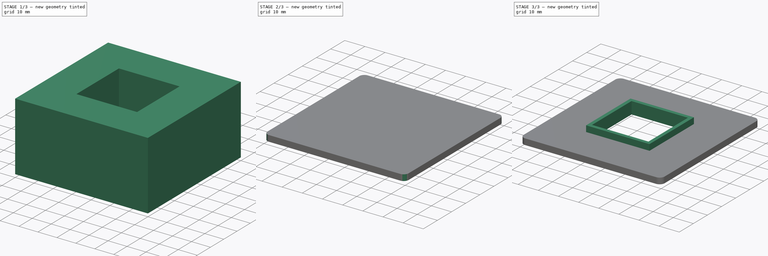
[diagram: build sequence overview — one tinted view per stage of 3, left to right]
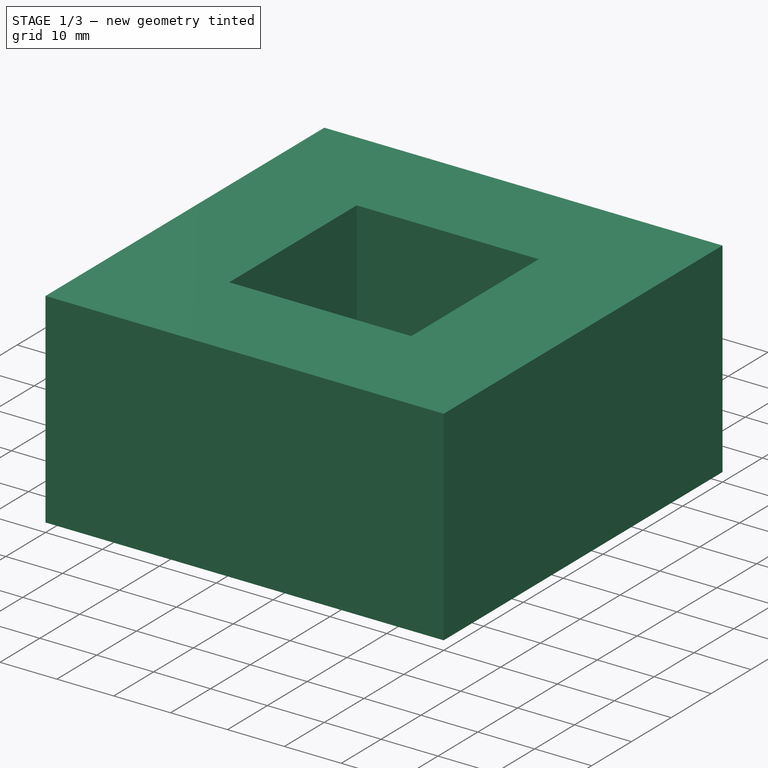
[diagram: stage 1 of 3 — iso view after this stage's code; geometry added in this stage tinted green]
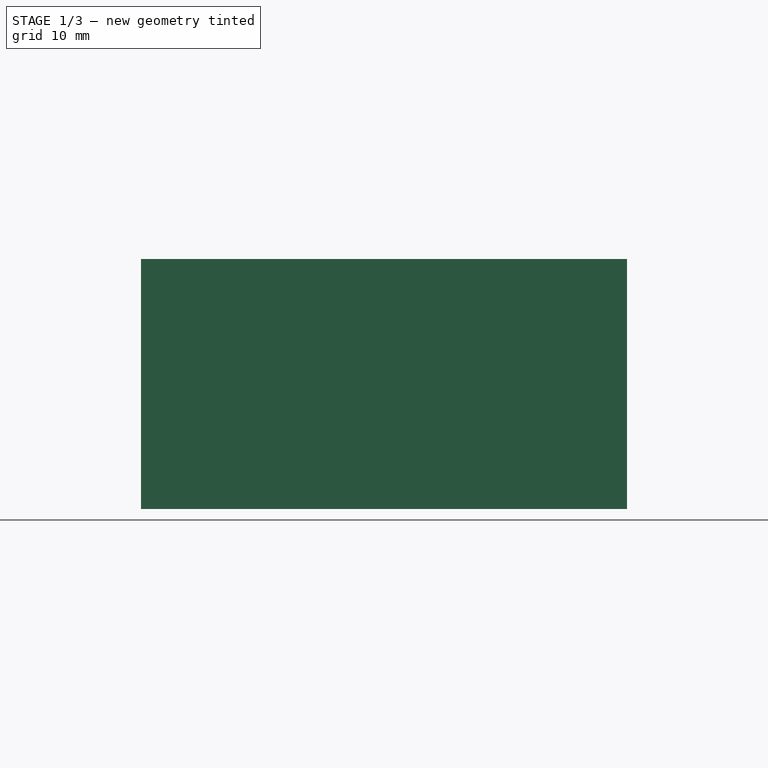
[diagram: stage 1 of 3 — front view after this stage's code; geometry added in this stage tinted green]
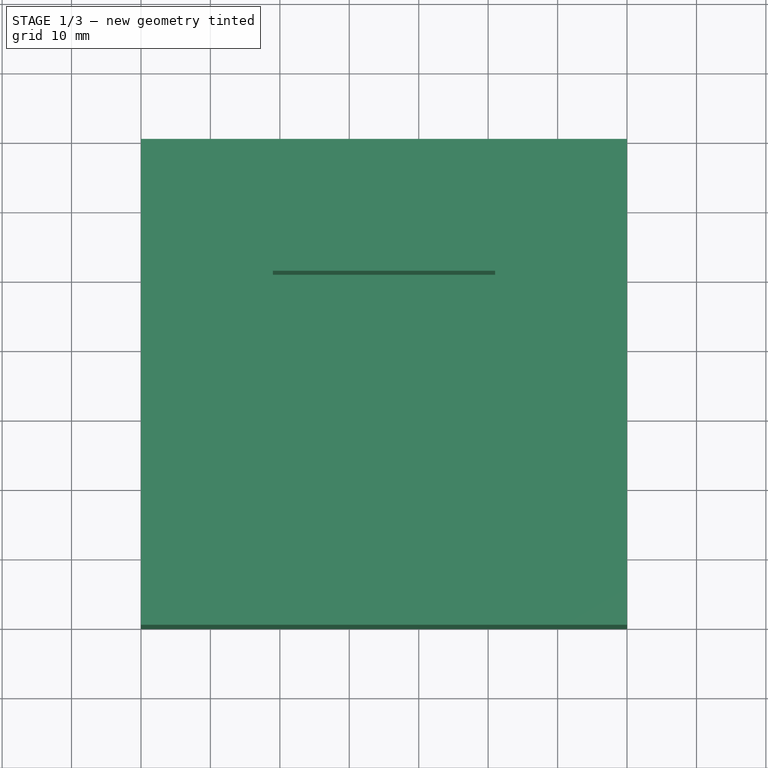
[diagram: stage 1 of 3 — top view after this stage's code; geometry added in this stage tinted green]
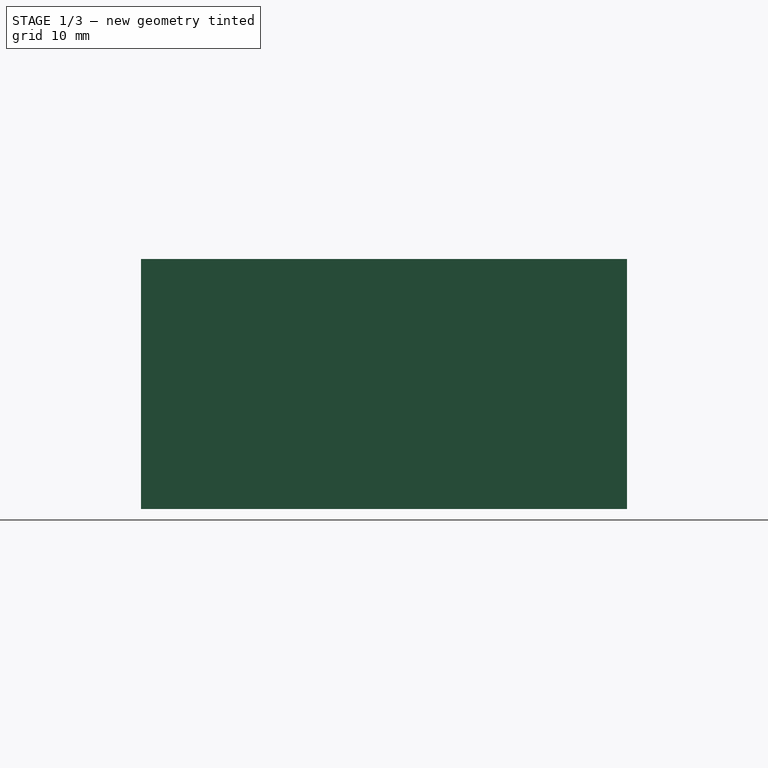
[diagram: stage 1 of 3 — right view after this stage's code; geometry added in this stage tinted green]
FCSTD DOCUMENT  (FreeCAD 0.19R)
Label: IkeaSofaFoot
License: All rights reserved
LicenseURL: http://en.wikipedia.org/wiki/All_rights_reserved
objects: Sketcher::SketchObject×4, PartDesign::Pad×3, PartDesign::Fillet×2, PartDesign::Body×2, App::Part×2, PartDesign::Draft×1, PartDesign::Pocket×1
note: 20 computed .brp shape members not serialized (recipe doc carries the construction recipe); baked Part::Feature solids carry a one-line shape summary decoded from their .brp

FEATURE [Sketcher::SketchObject] Sketch
  FullyConstrained = true
  MapMode = 5
  Support = -> [XY_Plane001]
  expr: Constraints[10] = .Constraints.MaxWidth
  expr: Constraints[23] = .Constraints.MaxWidth / 2
  expr: Constraints[24] = .Constraints.MaxWidth / 2
  sketch-geometry (9):
    g0: LineSegment StartX=0 StartY=0 StartZ=0 EndX=70 EndY=0 EndZ=0
    g1: LineSegment StartX=70 StartY=0 StartZ=0 EndX=70 EndY=70 EndZ=0
    g2: LineSegment StartX=70 StartY=70 StartZ=0 EndX=0 EndY=70 EndZ=0
    g3: LineSegment StartX=0 StartY=70 StartZ=0 EndX=0 EndY=0 EndZ=0
    g4: LineSegment StartX=51 StartY=19 StartZ=0 EndX=51 EndY=51 EndZ=0
    g5: LineSegment StartX=51 StartY=51 StartZ=0 EndX=19 EndY=51 EndZ=0
    g6: LineSegment StartX=19 StartY=51 StartZ=0 EndX=19 EndY=19 EndZ=0
    g7: LineSegment StartX=19 StartY=19 StartZ=0 EndX=51 EndY=19 EndZ=0
    g8: Circle CenterX=35 CenterY=35 CenterZ=0 NormalX=0 NormalY=0 NormalZ=1 AngleXU=0 Radius=22.6274
  constraints (26):
    c: Coincident(g0,g1)
    c: Coincident(g1,g2)
    c: Coincident(g2,g3)
    c: Coincident(g3,g0)
    c: Horizontal(g0)
    c: Horizontal(g2)
    c: Vertical(g1)
    c: Vertical(g3)
    c: Coincident(g0,g-1)
    c: DistanceX(g0,g0) = 70  'MaxWidth'
    c: DistanceY(g1,g1) = 70
    c: Coincident(g4,g5)
    c: Coincident(g5,g6)
    c: Coincident(g6,g7)
    c: Coincident(g7,g4)
    c: Equal(g4,g5)
    c: Equal(g4,g6)
    c: Equal(g4,g7)
    c: PointOnObject(g4,g8)
    c: PointOnObject(g5,g8)
    c: PointOnObject(g6,g8)
    c: PointOnObject(g7,g8)
    c: Horizontal(g5)
    c: DistanceX(g0,g8) = 35
    c: DistanceY(g0,g8) = 35
    c: DistanceX(g5,g5) = 32
FEATURE [PartDesign::Pad] Pad
  Direction = (1,1,1)
  Length = 33
  Length2 = 100
  Profile = -> Sketch
  Type = 0
FEATURE [PartDesign::Body] Body
  Group = -> [Sketch,Pad,Draft,Fillet]
  Origin = -> Origin001
  Tip = -> Fillet
FEATURE [App::Part] Part
  Group = -> [Body]
  Origin = -> Origin
FEATURE [Sketcher::SketchObject] Sketch001
  FullyConstrained = true
  MapMode = 5
  Support = -> [XY_Plane003]
  expr: Constraints[10] = <<Sketch>>.Constraints.MaxWidth
  expr: Constraints[9] = <<Sketch>>.Constraints.MaxWidth
  sketch-geometry (4):
    g0: LineSegment StartX=0 StartY=0 StartZ=0 EndX=70 EndY=0 EndZ=0
    g1: LineSegment StartX=70 StartY=0 StartZ=0 EndX=70 EndY=70 EndZ=0
    g2: LineSegment StartX=70 StartY=70 StartZ=0 EndX=0 EndY=70 EndZ=0
    g3: LineSegment StartX=0 StartY=70 StartZ=0 EndX=0 EndY=0 EndZ=0
  constraints (11):
    c: Coincident(g0,g1)
    c: Coincident(g1,g2)
    c: Coincident(g2,g3)
    c: Coincident(g3,g0)
    c: Horizontal(g0)
    c: Horizontal(g2)
    c: Vertical(g1)
    c: Vertical(g3)
    c: Coincident(g0,g-1)
    c: DistanceX(g2,g2) = 70
    c: DistanceY(g1,g1) = 70
FEATURE [PartDesign::Pad] Pad001
  Direction = (1,1,1)
  Length = 3
  Length2 = 100
  Profile = -> Sketch001
  Reversed = true
  Type = 0
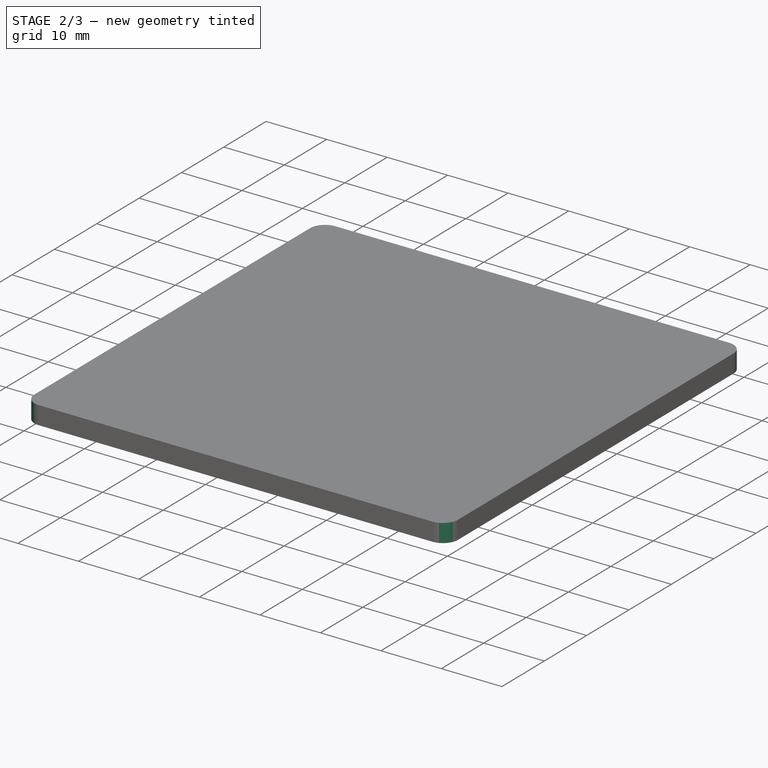
[diagram: stage 2 of 3 — iso view after this stage's code; geometry added in this stage tinted green]
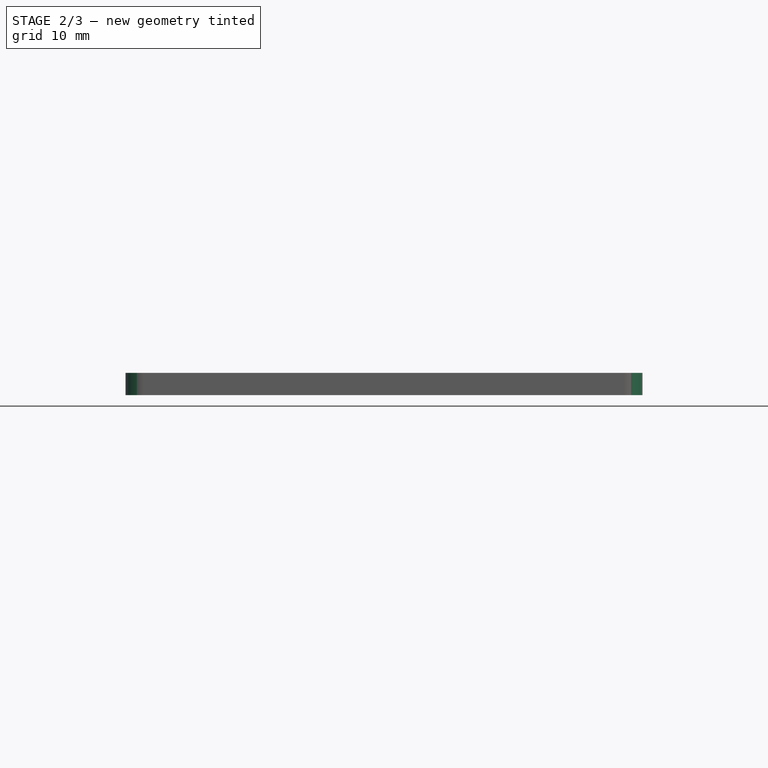
[diagram: stage 2 of 3 — front view after this stage's code; geometry added in this stage tinted green]
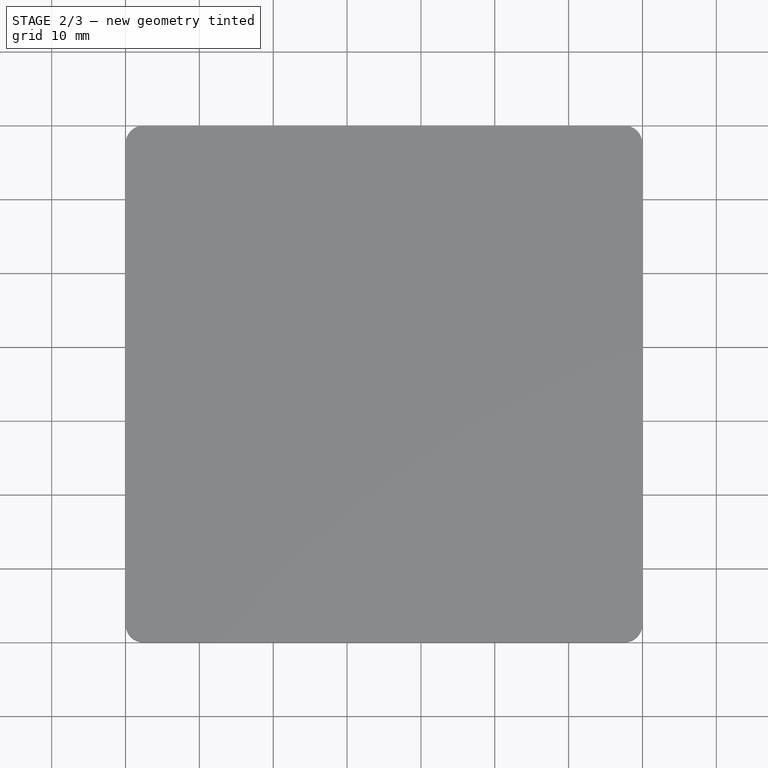
[diagram: stage 2 of 3 — top view after this stage's code; geometry added in this stage tinted green]
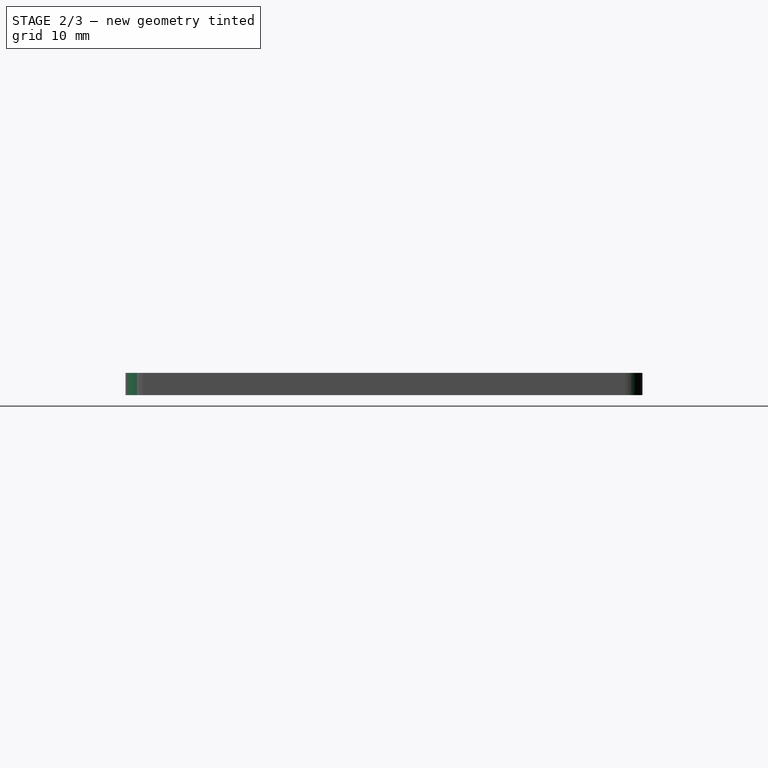
[diagram: stage 2 of 3 — right view after this stage's code; geometry added in this stage tinted green]
FEATURE [PartDesign::Draft] Draft
  Angle = 4
  Base = -> Pad [Face1,Face2,Face4,Face3]
  BaseFeature = -> Pad
  NeutralPlane = -> Pad [Face9]
  SupportTransform = false
FEATURE [PartDesign::Fillet] Fillet
  Base = -> Draft [Edge7,Edge10,Edge24,Edge22,Edge19,Edge16,Edge4,Edge12,Edge1,Edge8,Edge2,Edge5]
  BaseFeature = -> Draft
  Radius = 2.5
  SupportTransform = false
FEATURE [PartDesign::Fillet] Fillet001
  Base = -> Pad001 [Edge5,Edge8,Edge2,Edge1]
  BaseFeature = -> Pad001
  Radius = 2.5
  SupportTransform = false
  expr: Radius = <<Fillet>>.Radius
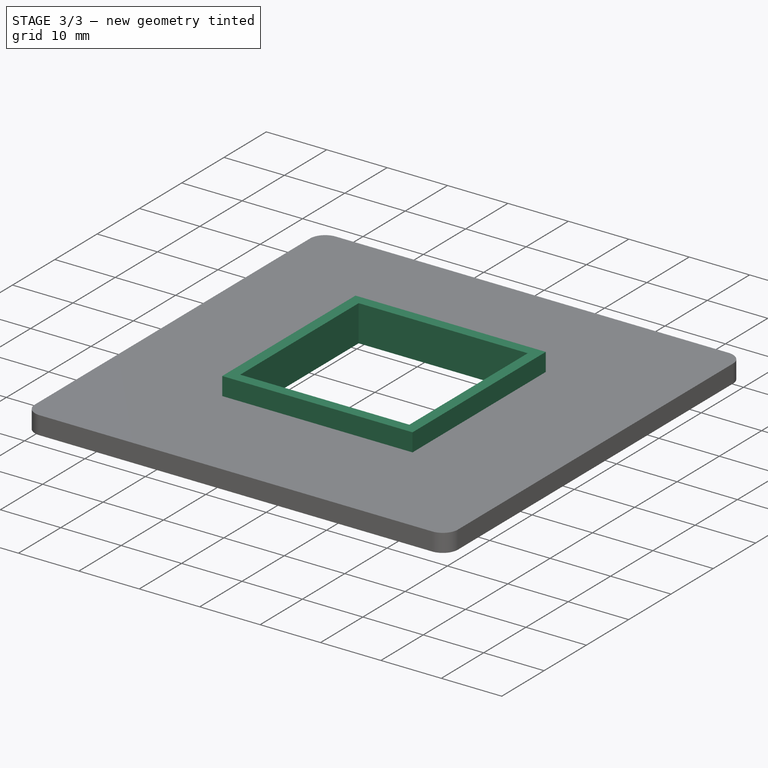
[diagram: stage 3 of 3 — iso view after this stage's code; geometry added in this stage tinted green]
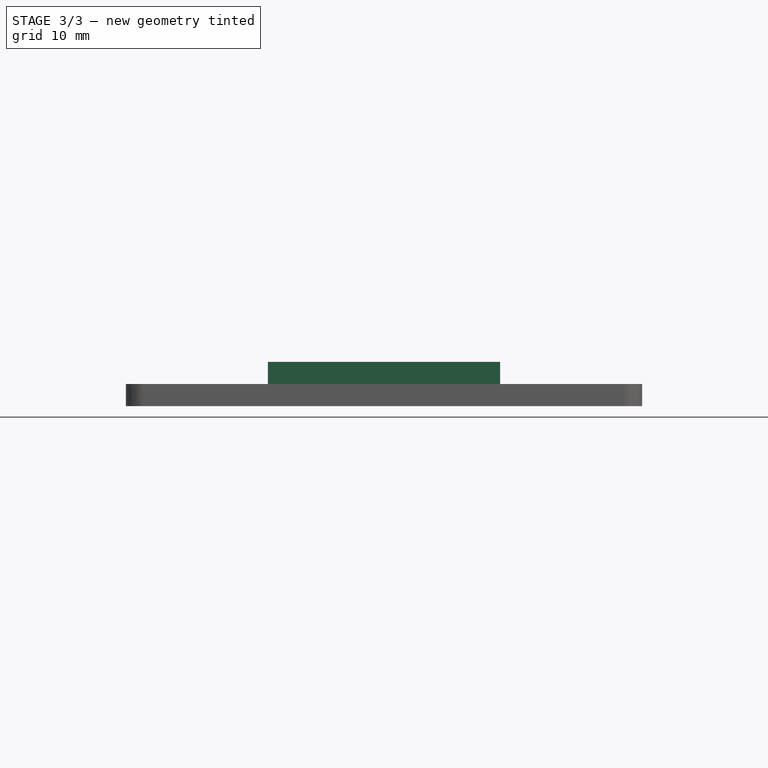
[diagram: stage 3 of 3 — front view after this stage's code; geometry added in this stage tinted green]
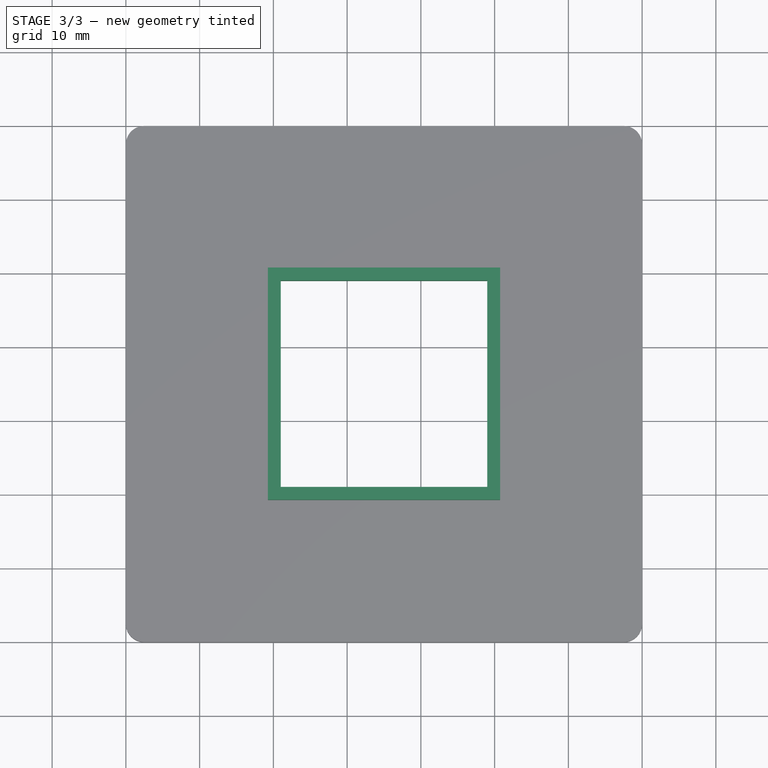
[diagram: stage 3 of 3 — top view after this stage's code; geometry added in this stage tinted green]
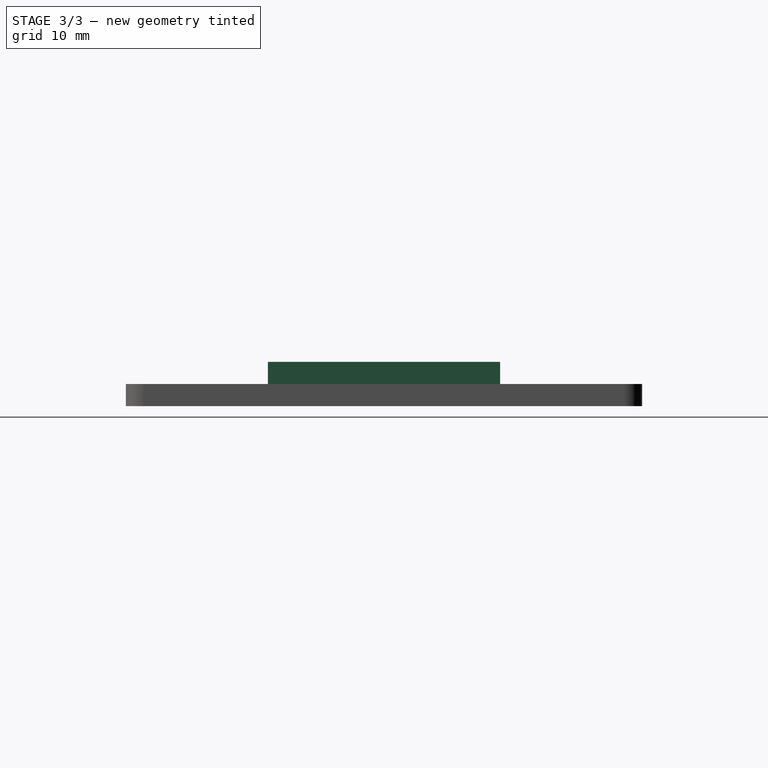
[diagram: stage 3 of 3 — right view after this stage's code; geometry added in this stage tinted green]
FEATURE [Sketcher::SketchObject] Sketch002
  FullyConstrained = true
  MapMode = 5
  Support = -> [Fillet001]
  expr: Constraints[12] = <<Sketch>>.Constraints.MaxWidth / 2
  expr: Constraints[11] = <<Sketch>>.Constraints.MaxWidth / 2
  sketch-geometry (5):
    g0: LineSegment StartX=50.75 StartY=19.25 StartZ=0 EndX=50.75 EndY=50.75 EndZ=0
    g1: LineSegment StartX=50.75 StartY=50.75 StartZ=0 EndX=19.25 EndY=50.75 EndZ=0
    g2: LineSegment StartX=19.25 StartY=50.75 StartZ=0 EndX=19.25 EndY=19.25 EndZ=0
    g3: LineSegment StartX=19.25 StartY=19.25 StartZ=0 EndX=50.75 EndY=19.25 EndZ=0
    g4: Circle CenterX=35 CenterY=35 CenterZ=0 NormalX=0 NormalY=0 NormalZ=1 AngleXU=0 Radius=22.2739
  constraints (15):
    c: Coincident(g0,g1)
    c: Coincident(g1,g2)
    c: Coincident(g2,g3)
    c: Coincident(g3,g0)
    c: Equal(g0,g1)
    c: Equal(g0,g2)
    c: Equal(g0,g3)
    c: PointOnObject(g0,g4)
    c: PointOnObject(g1,g4)
    c: PointOnObject(g2,g4)
    c: PointOnObject(g3,g4)
    c: DistanceX(g-1,g4) = 35
    c: DistanceY(g-1,g4) = 35
    c: Horizontal(g1)
    c: DistanceX(g1,g1) = 31.5
FEATURE [PartDesign::Pad] Pad002
  BaseFeature = -> Fillet001
  Direction = (1,1,1)
  Length = 3
  Length2 = 100
  Profile = -> Sketch002
  Type = 0
FEATURE [Sketcher::SketchObject] Sketch003
  FullyConstrained = true
  MapMode = 5
  Placement = pos=(0,0,3) rot=(0,0,1;0rad)
  Support = -> [Pad002]
  expr: Constraints[12] = <<Sketch>>.Constraints.MaxWidth / 2
  expr: Constraints[11] = <<Sketch>>.Constraints.MaxWidth / 2
  sketch-geometry (5):
    g0: LineSegment StartX=49 StartY=21 StartZ=0 EndX=49 EndY=49 EndZ=0
    g1: LineSegment StartX=49 StartY=49 StartZ=0 EndX=21 EndY=49 EndZ=0
    g2: LineSegment StartX=21 StartY=49 StartZ=0 EndX=21 EndY=21 EndZ=0
    g3: LineSegment StartX=21 StartY=21 StartZ=0 EndX=49 EndY=21 EndZ=0
    g4: Circle CenterX=35 CenterY=35 CenterZ=0 NormalX=0 NormalY=0 NormalZ=1 AngleXU=0 Radius=19.799
  constraints (15):
    c: Coincident(g0,g1)
    c: Coincident(g1,g2)
    c: Coincident(g2,g3)
    c: Coincident(g3,g0)
    c: Equal(g0,g1)
    c: Equal(g0,g2)
    c: Equal(g0,g3)
    c: PointOnObject(g0,g4)
    c: PointOnObject(g1,g4)
    c: PointOnObject(g2,g4)
    c: PointOnObject(g3,g4)
    c: DistanceX(g-1,g4) = 35
    c: DistanceY(g-1,g4) = 35
    c: Horizontal(g1)
    c: DistanceX(g1,g1) = 28
FEATURE [PartDesign::Pocket] Pocket
  BaseFeature = -> Pad002
  Length = 5
  Length2 = 100
  Profile = -> Sketch003
  Type = 1
FEATURE [PartDesign::Body] Body001
  Group = -> [Sketch001,Pad001,Fillet001,Sketch002,Pad002,Sketch003,Pocket]
  Origin = -> Origin003
  Tip = -> Pocket
FEATURE [App::Part] Part001  label="Padding"
  Group = -> [Body001]
  Origin = -> Origin002
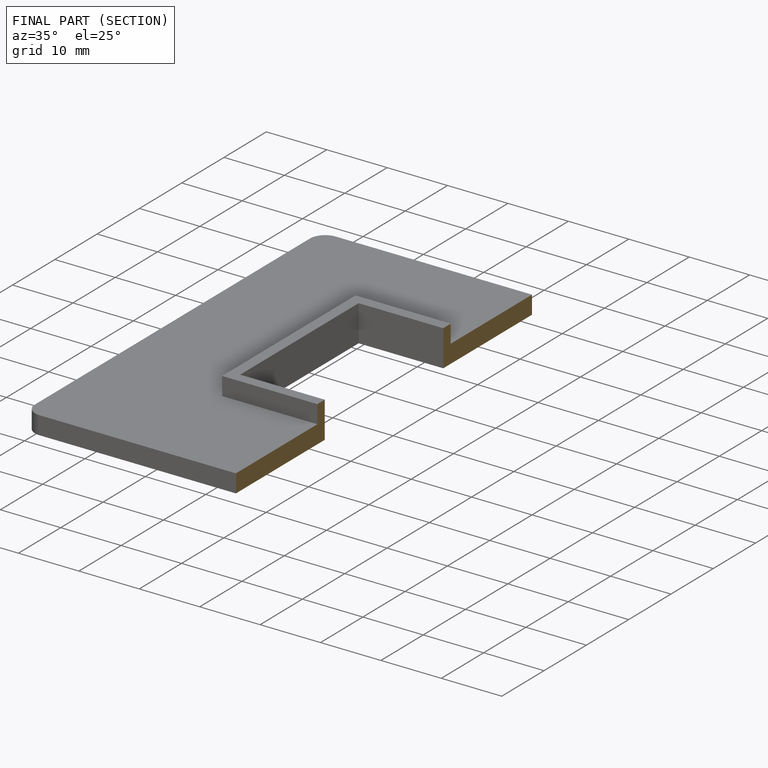
[diagram: finished part — half-section view (interior)]
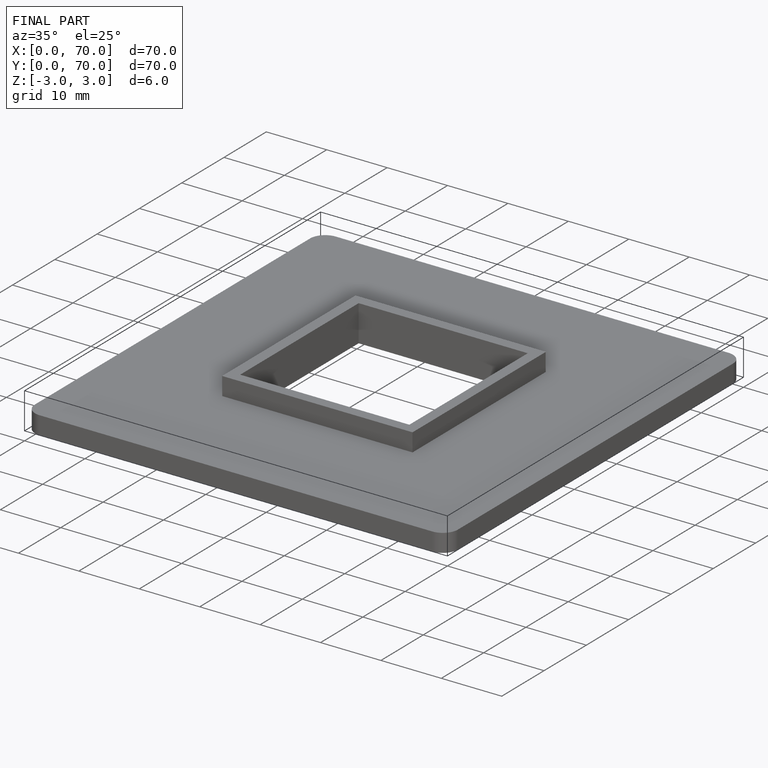
[diagram: finished part — iso view with bounding-box wireframe]
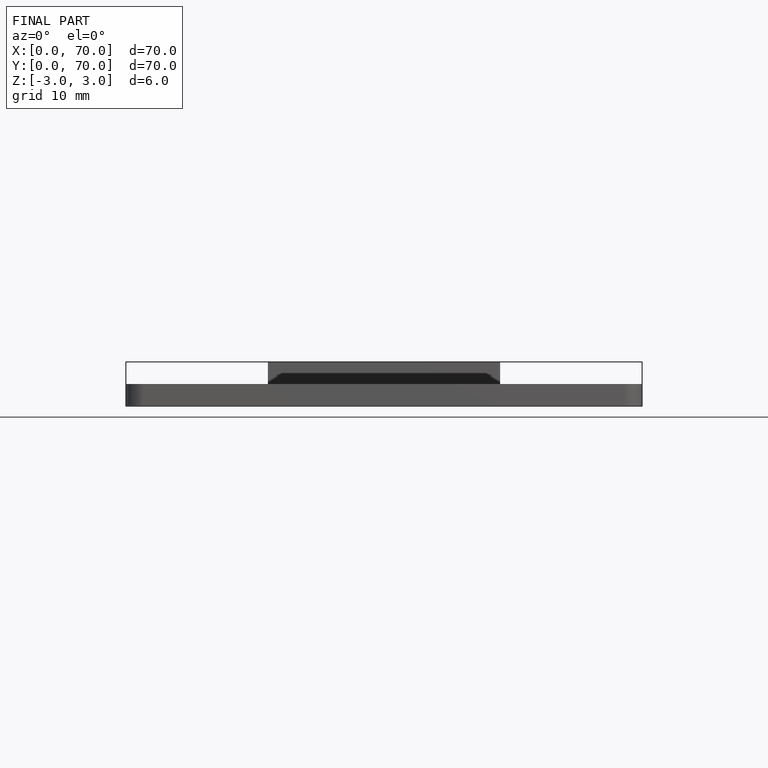
[diagram: finished part — front view with bounding-box wireframe]
